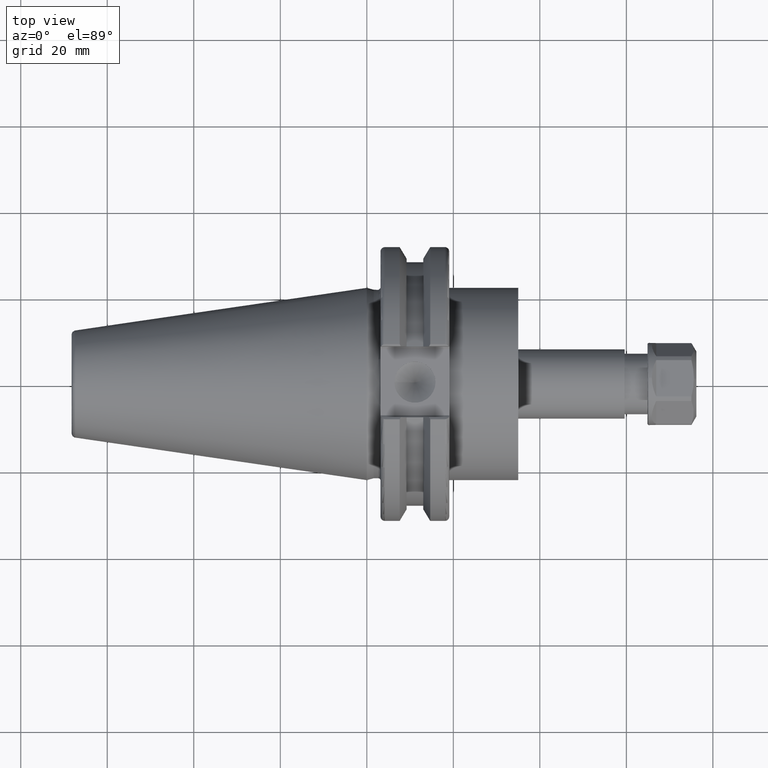
[diagram: clean part render]
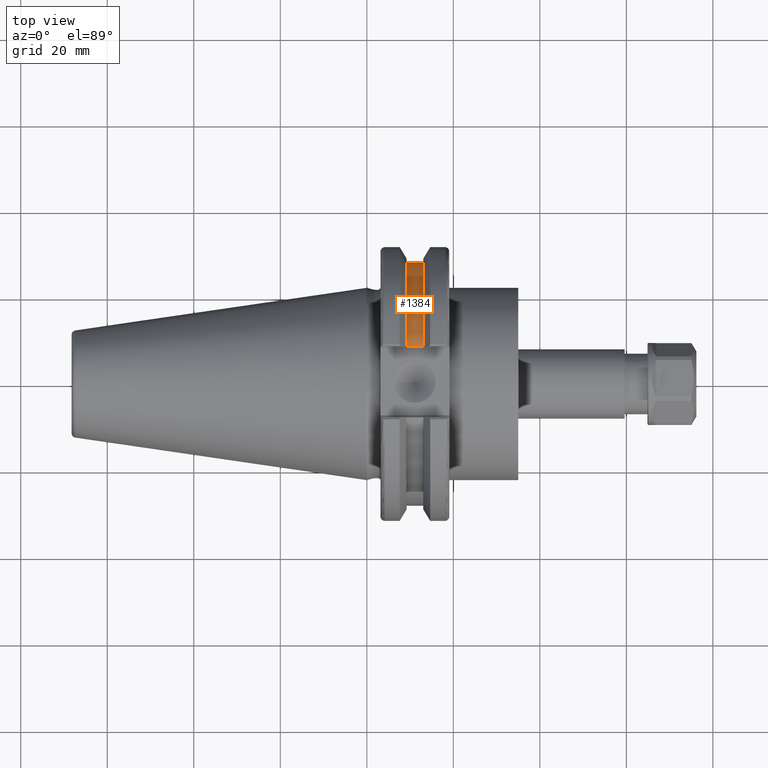
[diagram: same view with one face highlighted and labeled with its STEP entity id]
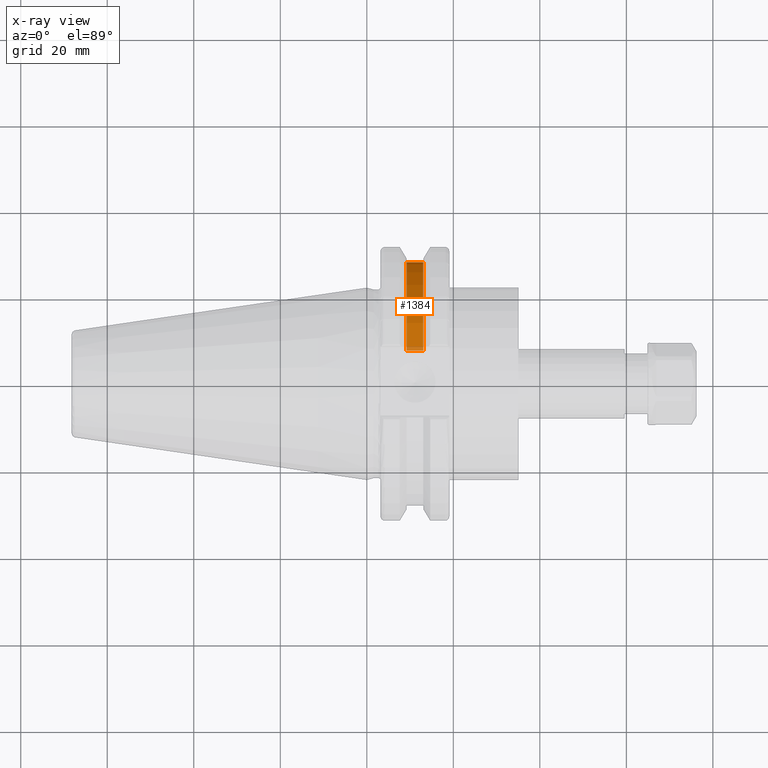
[diagram: x-ray of the same camera — body ghosted, the highlighted face saturated]
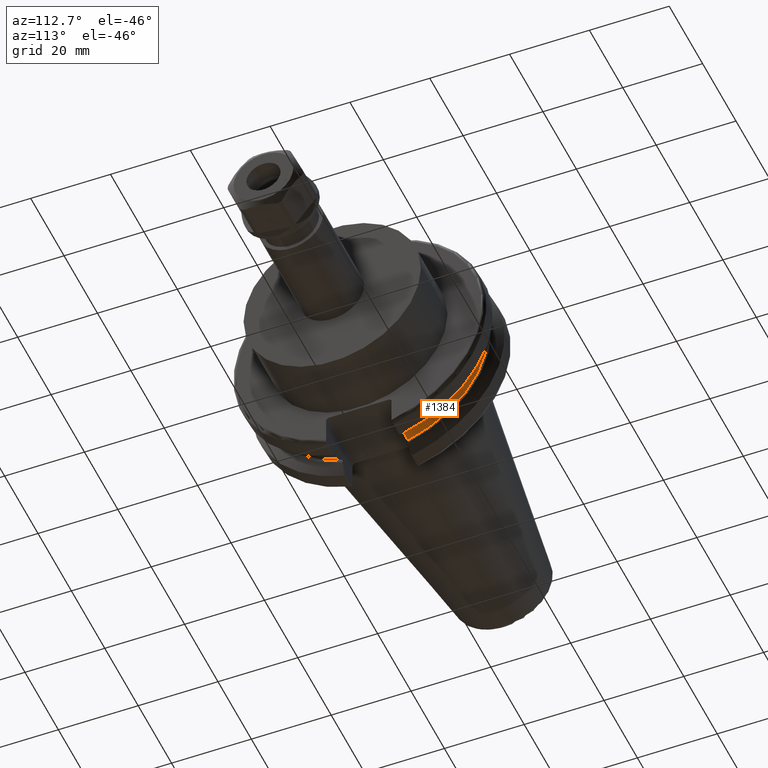
[diagram: same view with one face highlighted and labeled with its STEP entity id]
A machine part, top view. The second image highlights one B-rep face of the part: STEP entity #1384.
The next image is the same camera in x-ray: the body ghosted, the highlighted face saturated — about 5% of this face is hidden behind the body in this view.
A second angle (auxiliary view) of the same face is appended — the face is thin or edge-on in the first view.
In plain terms, the highlighted cylindrical surface (partial cylindrical patch) has radius 28.15 mm, axis along (1, 0, 0).
Its self-contained STEP definition (entity closure, byte-faithful):
#199=FACE_OUTER_BOUND('',#287,.T.);
#287=EDGE_LOOP('',(#1172,#1173,#1174,#1175));
#347=LINE('',#2194,#440);
#381=LINE('',#2408,#474);
#440=VECTOR('',#1746,10.);
#474=VECTOR('',#1840,10.);
#550=CIRCLE('',#1572,28.15);
#552=CIRCLE('',#1576,28.15);
#614=VERTEX_POINT('',#2191);
#615=VERTEX_POINT('',#2193);
#659=VERTEX_POINT('',#2405);
#660=VERTEX_POINT('',#2407);
#761=EDGE_CURVE('',#615,#614,#347,.T.);
#826=EDGE_CURVE('',#660,#659,#381,.T.);
#848=EDGE_CURVE('',#614,#660,#550,.T.);
#850=EDGE_CURVE('',#615,#659,#552,.T.);
#1172=ORIENTED_EDGE('',*,*,#761,.T.);
#1173=ORIENTED_EDGE('',*,*,#848,.T.);
#1174=ORIENTED_EDGE('',*,*,#826,.T.);
#1175=ORIENTED_EDGE('',*,*,#850,.F.);
#1327=CYLINDRICAL_SURFACE('',#1575,28.15);
#1384=ADVANCED_FACE('',(#199),#1327,.T.);
#1572=AXIS2_PLACEMENT_3D('',#2462,#1891,#1892);
#1575=AXIS2_PLACEMENT_3D('',#2465,#1897,#1898);
#1576=AXIS2_PLACEMENT_3D('',#2466,#1899,#1900);
#1746=DIRECTION('',(-1.,0.,0.));
#1840=DIRECTION('',(1.,0.,0.));
#1891=DIRECTION('center_axis',(1.,0.,0.));
#1892=DIRECTION('ref_axis',(0.,0.,-1.));
#1897=DIRECTION('center_axis',(1.,0.,0.));
#1898=DIRECTION('ref_axis',(0.,1.,0.));
#1899=DIRECTION('center_axis',(1.,0.,0.));
#1900=DIRECTION('ref_axis',(0.,0.,-1.));
#2191=CARTESIAN_POINT('',(9.212,8.19,-26.932255754021));
#2193=CARTESIAN_POINT('',(13.042,8.19,-26.932255754021));
#2194=CARTESIAN_POINT('',(11.127,8.19,-26.932255754021));
#2405=CARTESIAN_POINT('',(13.042,8.19,26.932255754021));
#2407=CARTESIAN_POINT('',(9.212,8.19,26.932255754021));
#2408=CARTESIAN_POINT('',(11.127,8.19,26.932255754021));
#2462=CARTESIAN_POINT('Origin',(9.212,0.,0.));
#2465=CARTESIAN_POINT('Origin',(11.127,0.,0.));
#2466=CARTESIAN_POINT('Origin',(13.042,0.,0.));